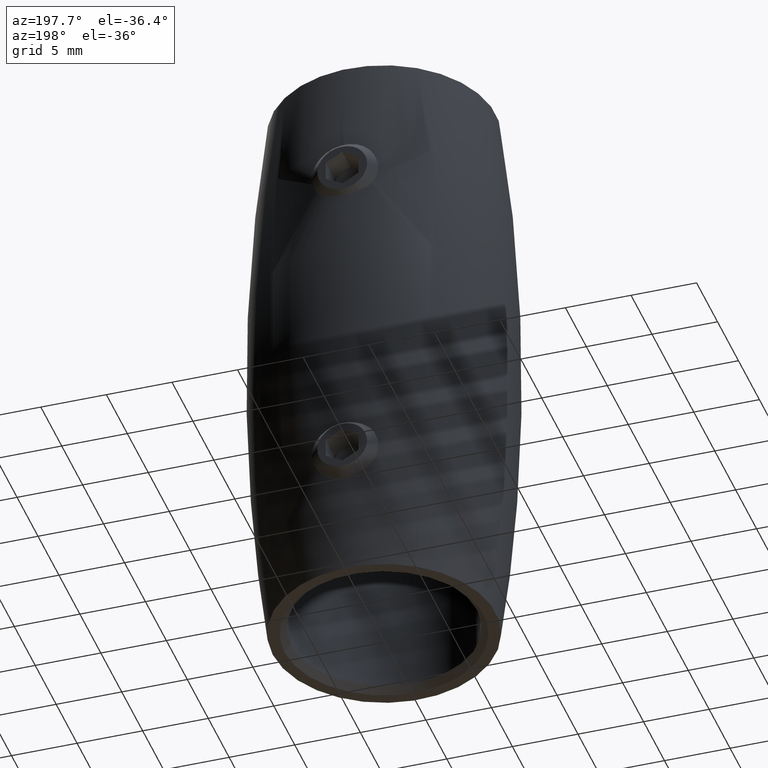
[diagram: clean part render]
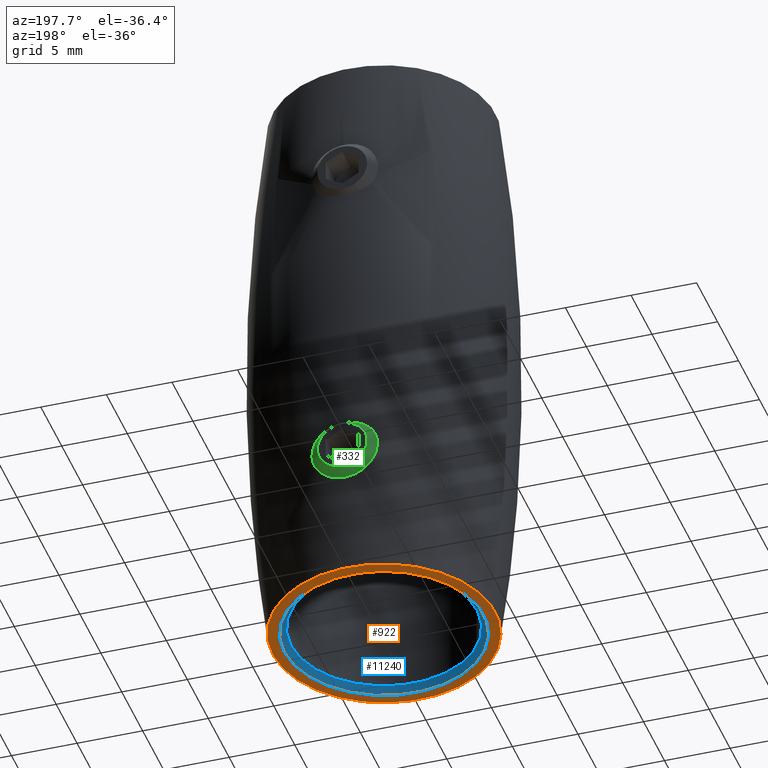
[diagram: same view with three faces highlighted in distinct colors, each labeled with its STEP entity id]
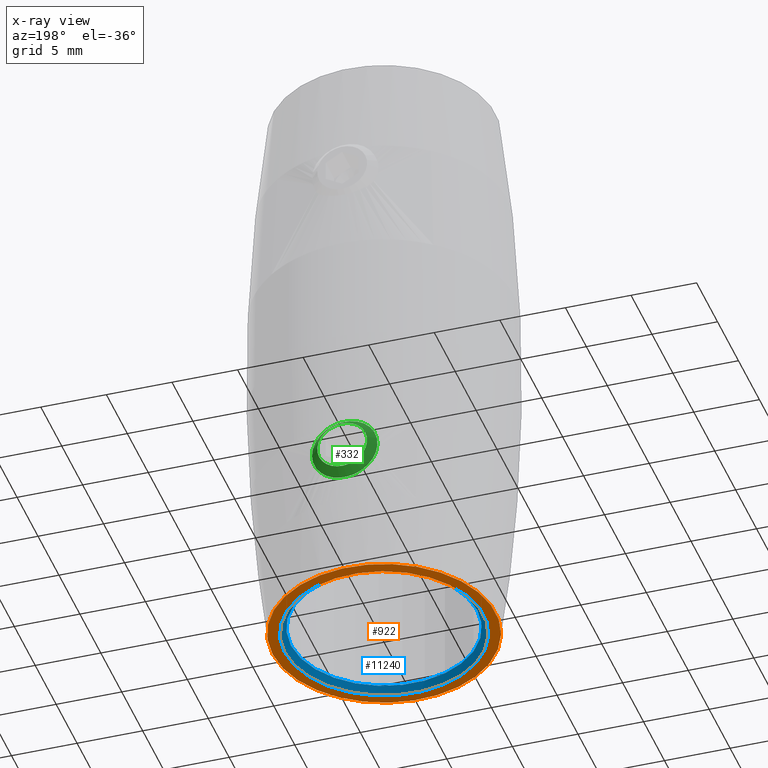
[diagram: x-ray of the same camera — body ghosted, the three highlighted faces saturated]
A machine part, auxiliary view with three faces highlighted in distinct colors.
The next image is the same camera in x-ray (body ghosted, the three faces saturated) — at least one of them is partly hidden behind the body in this view.
Their STEP definitions:

[orange] entity #922 — the highlighted planar face has unit normal (0, 0, 1).
#342 = EDGE_LOOP ( 'NONE', ( #3083 ) ) ;
#847 = FACE_BOUND ( 'NONE', #9190, .T. ) ;
#922 = ADVANCED_FACE ( 'NONE', ( #847, #5058 ), #3141, .F. ) ;
#1766 = EDGE_CURVE ( 'NONE', #9976, #9976, #11610, .T. ) ;
#2929 = DIRECTION ( 'NONE',  ( 1.000000000000000000, 0.000000000000000000, 0.000000000000000000 ) ) ;
#3083 = ORIENTED_EDGE ( 'NONE', *, *, #1766, .F. ) ;
#3141 = PLANE ( 'NONE',  #4993 ) ;
#4993 = AXIS2_PLACEMENT_3D ( 'NONE', #7064, #7104, #11773 ) ;
#5058 = FACE_OUTER_BOUND ( 'NONE', #342, .T. ) ;
#6700 = DIRECTION ( 'NONE',  ( -0.000000000000000000, -0.000000000000000000, 1.000000000000000000 ) ) ;
#6763 = CARTESIAN_POINT ( 'NONE',  ( 0.000000000000000000, 0.000000000000000000, -22.50000000000000000 ) ) ;
#7064 = CARTESIAN_POINT ( 'NONE',  ( 0.000000000000000000, 7.099999999999999645, -22.50000000000000000 ) ) ;
#7104 = DIRECTION ( 'NONE',  ( 0.000000000000000000, -0.000000000000000000, 1.000000000000000000 ) ) ;
#7612 = AXIS2_PLACEMENT_3D ( 'NONE', #10542, #6700, #2929 ) ;
#8571 = DIRECTION ( 'NONE',  ( 1.000000000000000000, 0.000000000000000000, 0.000000000000000000 ) ) ;
#8815 = EDGE_CURVE ( 'NONE', #9849, #9849, #11373, .T. ) ;
#9190 = EDGE_LOOP ( 'NONE', ( #9799 ) ) ;
#9466 = AXIS2_PLACEMENT_3D ( 'NONE', #6763, #10647, #8571 ) ;
#9799 = ORIENTED_EDGE ( 'NONE', *, *, #8815, .T. ) ;
#9849 = VERTEX_POINT ( 'NONE', #11640 ) ;
#9976 = VERTEX_POINT ( 'NONE', #10696 ) ;
#10542 = CARTESIAN_POINT ( 'NONE',  ( 0.000000000000000000, 0.000000000000000000, -22.50000000000000000 ) ) ;
#10647 = DIRECTION ( 'NONE',  ( -0.000000000000000000, -0.000000000000000000, 1.000000000000000000 ) ) ;
#10696 = CARTESIAN_POINT ( 'NONE',  ( 8.499999999999996447, 0.000000000000000000, -22.50000000000000000 ) ) ;
#11373 = CIRCLE ( 'NONE', #7612, 7.600000000000002309 ) ;
#11610 = CIRCLE ( 'NONE', #9466, 8.499999999999996447 ) ;
#11640 = CARTESIAN_POINT ( 'NONE',  ( 7.600000000000002309, 0.000000000000000000, -22.50000000000000000 ) ) ;
#11773 = DIRECTION ( 'NONE',  ( 1.000000000000000000, 0.000000000000000000, 0.000000000000000000 ) ) ;

[blue] entity #11240 — the highlighted conical surface has half-angle 45 deg.
#1214 = AXIS2_PLACEMENT_3D ( 'NONE', #1454, #9120, #2416 ) ;
#1402 = AXIS2_PLACEMENT_3D ( 'NONE', #5455, #6449, #12075 ) ;
#1454 = CARTESIAN_POINT ( 'NONE',  ( 0.000000000000000000, 0.000000000000000000, -22.50000000000000000 ) ) ;
#1814 = ORIENTED_EDGE ( 'NONE', *, *, #7998, .F. ) ;
#2416 = DIRECTION ( 'NONE',  ( -1.000000000000000000, 0.000000000000000000, 0.000000000000000000 ) ) ;
#2496 = FACE_OUTER_BOUND ( 'NONE', #10668, .T. ) ;
#2504 = EDGE_LOOP ( 'NONE', ( #1814 ) ) ;
#2929 = DIRECTION ( 'NONE',  ( 1.000000000000000000, 0.000000000000000000, 0.000000000000000000 ) ) ;
#3009 = CARTESIAN_POINT ( 'NONE',  ( 7.099999999999999645, 0.000000000000000000, -21.99999999999999289 ) ) ;
#5073 = VERTEX_POINT ( 'NONE', #3009 ) ;
#5455 = CARTESIAN_POINT ( 'NONE',  ( 0.000000000000000000, 0.000000000000000000, -21.99999999999999289 ) ) ;
#6313 = ORIENTED_EDGE ( 'NONE', *, *, #8815, .F. ) ;
#6449 = DIRECTION ( 'NONE',  ( -0.000000000000000000, -0.000000000000000000, -1.000000000000000000 ) ) ;
#6700 = DIRECTION ( 'NONE',  ( -0.000000000000000000, -0.000000000000000000, 1.000000000000000000 ) ) ;
#7612 = AXIS2_PLACEMENT_3D ( 'NONE', #10542, #6700, #2929 ) ;
#7998 = EDGE_CURVE ( 'NONE', #5073, #5073, #8109, .T. ) ;
#8109 = CIRCLE ( 'NONE', #1402, 7.099999999999999645 ) ;
#8815 = EDGE_CURVE ( 'NONE', #9849, #9849, #11373, .T. ) ;
#8830 = CONICAL_SURFACE ( 'NONE', #1214, 7.600000000000002309, 0.7853981633974439491 ) ;
#9120 = DIRECTION ( 'NONE',  ( -0.000000000000000000, -0.000000000000000000, -1.000000000000000000 ) ) ;
#9849 = VERTEX_POINT ( 'NONE', #11640 ) ;
#10138 = FACE_BOUND ( 'NONE', #2504, .T. ) ;
#10542 = CARTESIAN_POINT ( 'NONE',  ( 0.000000000000000000, 0.000000000000000000, -22.50000000000000000 ) ) ;
#10668 = EDGE_LOOP ( 'NONE', ( #6313 ) ) ;
#11240 = ADVANCED_FACE ( 'NONE', ( #10138, #2496 ), #8830, .F. ) ;
#11373 = CIRCLE ( 'NONE', #7612, 7.600000000000002309 ) ;
#11640 = CARTESIAN_POINT ( 'NONE',  ( 7.600000000000002309, 0.000000000000000000, -22.50000000000000000 ) ) ;
#12075 = DIRECTION ( 'NONE',  ( 1.000000000000000000, 0.000000000000000000, 0.000000000000000000 ) ) ;

[green] entity #332 — the highlighted conical surface has half-angle 45 deg.
#332 = ADVANCED_FACE ( 'NONE', ( #5353, #6713 ), #4172, .T. ) ;
#436 = EDGE_CURVE ( 'NONE', #1016, #1016, #11164, .T. ) ;
#1016 = VERTEX_POINT ( 'NONE', #1995 ) ;
#1540 = DIRECTION ( 'NONE',  ( 0.000000000000000000, 0.000000000000000000, -1.000000000000000000 ) ) ;
#1995 = CARTESIAN_POINT ( 'NONE',  ( 2.399999999999998135, 0.000000000000000000, -2.500000000000000000 ) ) ;
#2370 = DIRECTION ( 'NONE',  ( 1.000000000000000000, 0.000000000000000000, 0.000000000000000000 ) ) ;
#2547 = ORIENTED_EDGE ( 'NONE', *, *, #2867, .F. ) ;
#2576 = EDGE_LOOP ( 'NONE', ( #10868 ) ) ;
#2867 = EDGE_CURVE ( 'NONE', #5821, #5821, #5467, .T. ) ;
#4027 = AXIS2_PLACEMENT_3D ( 'NONE', #5209, #6101, #8053 ) ;
#4172 = CONICAL_SURFACE ( 'NONE', #4027, 1.900000000000000133, 0.7853981633974465026 ) ;
#4978 = CARTESIAN_POINT ( 'NONE',  ( 3.000000000000000000, 0.000000000000000000, -1.900000000000000133 ) ) ;
#5209 = CARTESIAN_POINT ( 'NONE',  ( 3.000000000000000000, 0.000000000000000000, 0.000000000000000000 ) ) ;
#5353 = FACE_OUTER_BOUND ( 'NONE', #2576, .T. ) ;
#5467 = CIRCLE ( 'NONE', #10676, 1.900000000000000133 ) ;
#5533 = AXIS2_PLACEMENT_3D ( 'NONE', #8251, #9125, #1540 ) ;
#5821 = VERTEX_POINT ( 'NONE', #4978 ) ;
#6101 = DIRECTION ( 'NONE',  ( -1.000000000000000000, 0.000000000000000000, 0.000000000000000000 ) ) ;
#6713 = FACE_BOUND ( 'NONE', #10041, .T. ) ;
#8053 = DIRECTION ( 'NONE',  ( 0.000000000000000000, 0.000000000000000000, 1.000000000000000000 ) ) ;
#8251 = CARTESIAN_POINT ( 'NONE',  ( 2.399999999999998135, 0.000000000000000000, 0.000000000000000000 ) ) ;
#9125 = DIRECTION ( 'NONE',  ( -1.000000000000000000, 0.000000000000000000, 0.000000000000000000 ) ) ;
#10041 = EDGE_LOOP ( 'NONE', ( #2547 ) ) ;
#10189 = DIRECTION ( 'NONE',  ( 0.000000000000000000, 0.000000000000000000, -1.000000000000000000 ) ) ;
#10676 = AXIS2_PLACEMENT_3D ( 'NONE', #11069, #2370, #10189 ) ;
#10868 = ORIENTED_EDGE ( 'NONE', *, *, #436, .F. ) ;
#11069 = CARTESIAN_POINT ( 'NONE',  ( 3.000000000000000000, 0.000000000000000000, 0.000000000000000000 ) ) ;
#11164 = CIRCLE ( 'NONE', #5533, 2.500000000000000000 ) ;